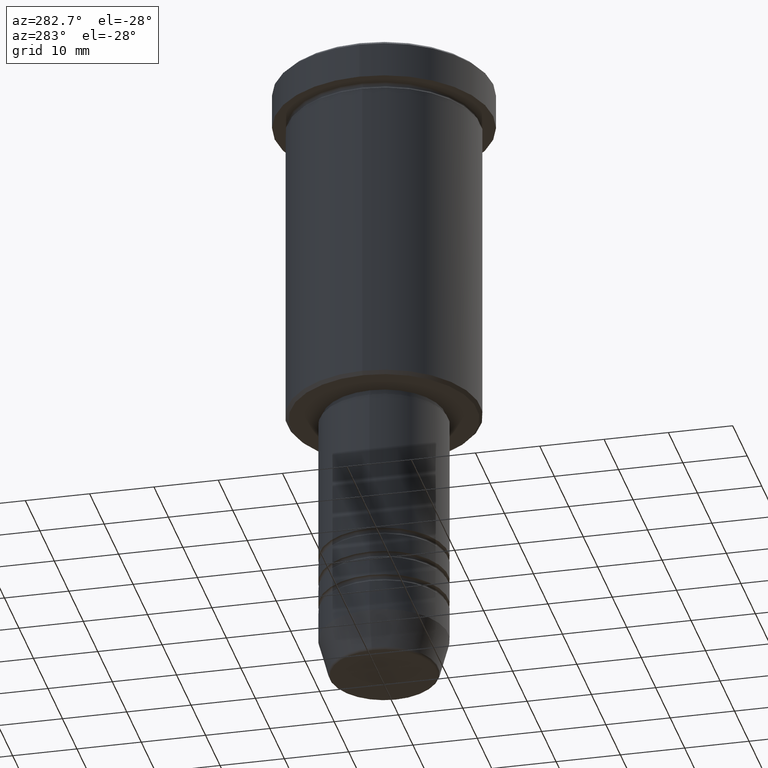
[diagram: clean part render]
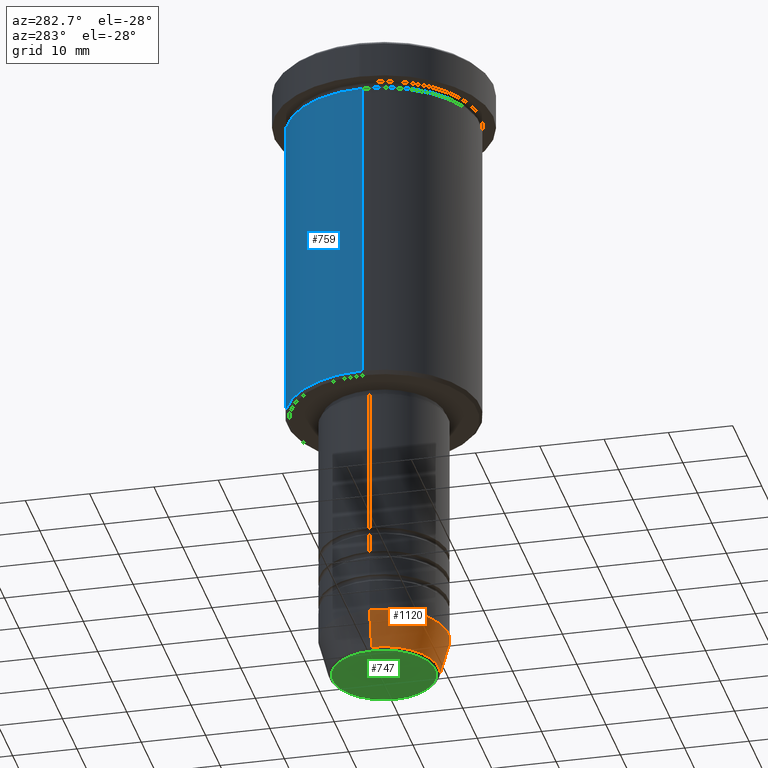
[diagram: same view with three faces highlighted in distinct colors, each labeled with its STEP entity id]
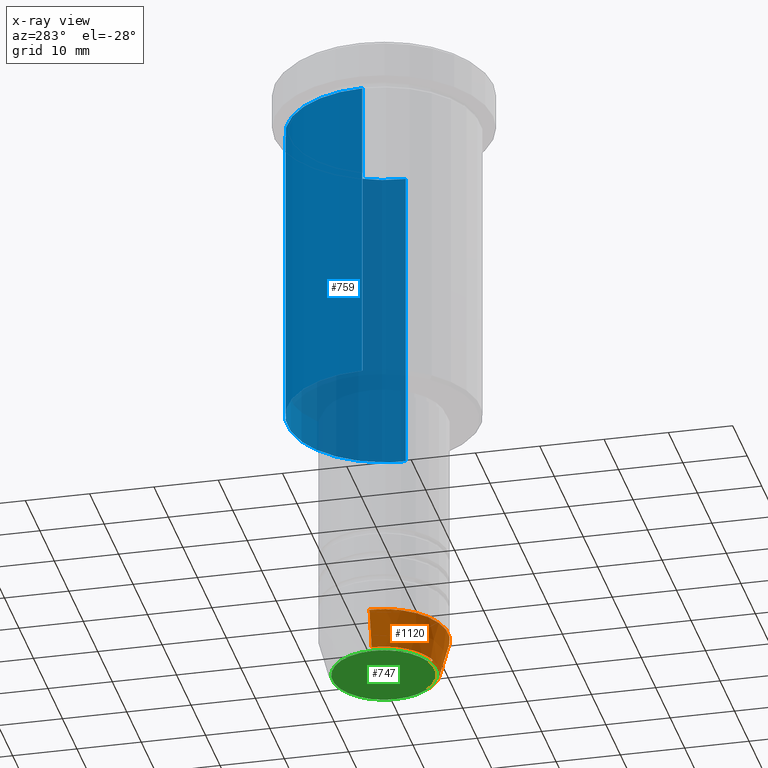
[diagram: x-ray of the same camera — body ghosted, the three highlighted faces saturated]
A machine part, auxiliary view with three faces highlighted in distinct colors.
The next image is the same camera in x-ray (body ghosted, the three faces saturated) — at least one of them is partly hidden behind the body in this view.
Their STEP definitions:

[orange] entity #1120 — the highlighted conical surface has half-angle 15 deg.
#3 = DIRECTION ( 'NONE',  ( 1.000000000000000000, 0.000000000000000000, 0.000000000000000000 ) ) ;
#40 = DIRECTION ( 'NONE',  ( 0.2588190451025214056, 0.000000000000000000, 0.9659258262890680902 ) ) ;
#45 = CARTESIAN_POINT ( 'NONE',  ( 0.000000000000000000, 0.000000000000000000, -99.62940952255127058 ) ) ;
#70 = CARTESIAN_POINT ( 'NONE',  ( 10.00000000000000178, 0.000000000000000000, -94.00000000000000000 ) ) ;
#84 = EDGE_CURVE ( 'NONE', #519, #623, #841, .T. ) ;
#99 = VECTOR ( 'NONE', #40, 1000.000000000000000 ) ;
#127 = EDGE_CURVE ( 'NONE', #305, #519, #198, .T. ) ;
#134 = DIRECTION ( 'NONE',  ( -0.000000000000000000, -0.000000000000000000, 1.000000000000000000 ) ) ;
#144 = DIRECTION ( 'NONE',  ( -0.000000000000000000, -0.000000000000000000, 1.000000000000000000 ) ) ;
#175 = ORIENTED_EDGE ( 'NONE', *, *, #84, .T. ) ;
#198 = CIRCLE ( 'NONE', #782, 8.491604264568312743 ) ;
#241 = FACE_OUTER_BOUND ( 'NONE', #551, .T. ) ;
#269 = DIRECTION ( 'NONE',  ( -0.2588190451025214056, 3.169619151431772953E-17, 0.9659258262890680902 ) ) ;
#273 = CIRCLE ( 'NONE', #802, 10.00000000000000178 ) ;
#280 = VERTEX_POINT ( 'NONE', #694 ) ;
#282 = CARTESIAN_POINT ( 'NONE',  ( -10.00000000000000178, 1.224646799147353454E-15, -94.00000000000000000 ) ) ;
#305 = VERTEX_POINT ( 'NONE', #447 ) ;
#357 = AXIS2_PLACEMENT_3D ( 'NONE', #719, #974, #3 ) ;
#377 = EDGE_CURVE ( 'NONE', #305, #280, #906, .T. ) ;
#437 = ORIENTED_EDGE ( 'NONE', *, *, #604, .F. ) ;
#447 = CARTESIAN_POINT ( 'NONE',  ( -8.491604264568312743, 1.132284198685156781E-15, -99.62940952255127058 ) ) ;
#511 = CARTESIAN_POINT ( 'NONE',  ( 10.00000000000000178, 0.000000000000000000, -94.00000000000000000 ) ) ;
#519 = VERTEX_POINT ( 'NONE', #733 ) ;
#551 = EDGE_LOOP ( 'NONE', ( #798, #1107, #175, #437 ) ) ;
#589 = DIRECTION ( 'NONE',  ( 1.000000000000000000, 0.000000000000000000, 0.000000000000000000 ) ) ;
#604 = EDGE_CURVE ( 'NONE', #280, #623, #273, .T. ) ;
#623 = VERTEX_POINT ( 'NONE', #70 ) ;
#694 = CARTESIAN_POINT ( 'NONE',  ( -10.00000000000000178, 1.224646799147353454E-15, -94.00000000000000000 ) ) ;
#719 = CARTESIAN_POINT ( 'NONE',  ( 0.000000000000000000, 0.000000000000000000, -94.00000000000000000 ) ) ;
#733 = CARTESIAN_POINT ( 'NONE',  ( 8.491604264568312743, 0.000000000000000000, -99.62940952255127058 ) ) ;
#773 = DIRECTION ( 'NONE',  ( 1.000000000000000000, 0.000000000000000000, 0.000000000000000000 ) ) ;
#782 = AXIS2_PLACEMENT_3D ( 'NONE', #45, #144, #589 ) ;
#798 = ORIENTED_EDGE ( 'NONE', *, *, #377, .F. ) ;
#802 = AXIS2_PLACEMENT_3D ( 'NONE', #1160, #134, #773 ) ;
#841 = LINE ( 'NONE', #511, #99 ) ;
#906 = LINE ( 'NONE', #282, #1170 ) ;
#952 = CONICAL_SURFACE ( 'NONE', #357, 10.00000000000000178, 0.2617993877991501295 ) ;
#974 = DIRECTION ( 'NONE',  ( -0.000000000000000000, -0.000000000000000000, 1.000000000000000000 ) ) ;
#1107 = ORIENTED_EDGE ( 'NONE', *, *, #127, .T. ) ;
#1120 = ADVANCED_FACE ( 'NONE', ( #241 ), #952, .T. ) ;
#1160 = CARTESIAN_POINT ( 'NONE',  ( 0.000000000000000000, 0.000000000000000000, -94.00000000000000000 ) ) ;
#1170 = VECTOR ( 'NONE', #269, 1000.000000000000000 ) ;

[blue] entity #759 — the highlighted cylindrical surface (partial cylindrical patch) has radius 15 mm, axis along (-0, -0, 1).
#52 = CARTESIAN_POINT ( 'NONE',  ( -15.00000000000000000, 1.836970198721029589E-15, 0.000000000000000000 ) ) ;
#131 = CARTESIAN_POINT ( 'NONE',  ( 15.00000000000000000, 0.000000000000000000, -55.49999999999997158 ) ) ;
#164 = CARTESIAN_POINT ( 'NONE',  ( 0.000000000000000000, 0.000000000000000000, 0.000000000000000000 ) ) ;
#167 = VERTEX_POINT ( 'NONE', #847 ) ;
#177 = DIRECTION ( 'NONE',  ( -0.000000000000000000, -0.000000000000000000, 1.000000000000000000 ) ) ;
#182 = EDGE_CURVE ( 'NONE', #884, #167, #316, .T. ) ;
#195 = LINE ( 'NONE', #535, #562 ) ;
#206 = VERTEX_POINT ( 'NONE', #494 ) ;
#213 = VERTEX_POINT ( 'NONE', #131 ) ;
#239 = DIRECTION ( 'NONE',  ( -0.000000000000000000, -0.000000000000000000, 1.000000000000000000 ) ) ;
#316 = LINE ( 'NONE', #52, #1169 ) ;
#317 = ORIENTED_EDGE ( 'NONE', *, *, #1150, .F. ) ;
#340 = DIRECTION ( 'NONE',  ( -1.000000000000000000, 0.000000000000000000, 0.000000000000000000 ) ) ;
#349 = EDGE_CURVE ( 'NONE', #213, #884, #989, .T. ) ;
#375 = CYLINDRICAL_SURFACE ( 'NONE', #417, 15.00000000000000000 ) ;
#382 = CARTESIAN_POINT ( 'NONE',  ( -15.00000000000000000, 1.836970198721029589E-15, -55.49999999999997158 ) ) ;
#417 = AXIS2_PLACEMENT_3D ( 'NONE', #164, #801, #730 ) ;
#433 = AXIS2_PLACEMENT_3D ( 'NONE', #441, #957, #340 ) ;
#441 = CARTESIAN_POINT ( 'NONE',  ( 0.000000000000000000, 0.000000000000000000, -55.49999999999997158 ) ) ;
#461 = ORIENTED_EDGE ( 'NONE', *, *, #182, .T. ) ;
#462 = CARTESIAN_POINT ( 'NONE',  ( 0.000000000000000000, 0.000000000000000000, -6.999999999999995559 ) ) ;
#494 = CARTESIAN_POINT ( 'NONE',  ( 15.00000000000000000, 0.000000000000000000, -6.999999999999995559 ) ) ;
#534 = DIRECTION ( 'NONE',  ( 1.000000000000000000, 0.000000000000000000, 0.000000000000000000 ) ) ;
#535 = CARTESIAN_POINT ( 'NONE',  ( 15.00000000000000000, 0.000000000000000000, 0.000000000000000000 ) ) ;
#548 = ORIENTED_EDGE ( 'NONE', *, *, #349, .T. ) ;
#554 = FACE_OUTER_BOUND ( 'NONE', #1059, .T. ) ;
#562 = VECTOR ( 'NONE', #886, 1000.000000000000000 ) ;
#721 = EDGE_CURVE ( 'NONE', #213, #206, #195, .T. ) ;
#730 = DIRECTION ( 'NONE',  ( 1.000000000000000000, 0.000000000000000000, 0.000000000000000000 ) ) ;
#759 = ADVANCED_FACE ( 'NONE', ( #554 ), #375, .T. ) ;
#801 = DIRECTION ( 'NONE',  ( -0.000000000000000000, -0.000000000000000000, 1.000000000000000000 ) ) ;
#839 = CIRCLE ( 'NONE', #877, 15.00000000000000000 ) ;
#847 = CARTESIAN_POINT ( 'NONE',  ( -15.00000000000000000, 1.836970198721029589E-15, -6.999999999999995559 ) ) ;
#877 = AXIS2_PLACEMENT_3D ( 'NONE', #462, #177, #534 ) ;
#884 = VERTEX_POINT ( 'NONE', #382 ) ;
#886 = DIRECTION ( 'NONE',  ( -0.000000000000000000, -0.000000000000000000, 1.000000000000000000 ) ) ;
#898 = ORIENTED_EDGE ( 'NONE', *, *, #721, .F. ) ;
#957 = DIRECTION ( 'NONE',  ( -0.000000000000000000, -0.000000000000000000, 1.000000000000000000 ) ) ;
#989 = CIRCLE ( 'NONE', #433, 15.00000000000000000 ) ;
#1059 = EDGE_LOOP ( 'NONE', ( #548, #461, #317, #898 ) ) ;
#1150 = EDGE_CURVE ( 'NONE', #206, #167, #839, .T. ) ;
#1169 = VECTOR ( 'NONE', #239, 1000.000000000000000 ) ;

[green] entity #747 — the highlighted planar face has unit normal (0, -0, 1).
#154 = CARTESIAN_POINT ( 'NONE',  ( -8.008641351423779753, 1.010348648938493172E-15, -100.0000000000000000 ) ) ;
#235 = CARTESIAN_POINT ( 'NONE',  ( 8.008641351423779753, 0.000000000000000000, -100.0000000000000000 ) ) ;
#252 = DIRECTION ( 'NONE',  ( 1.000000000000000000, 0.000000000000000000, 0.000000000000000000 ) ) ;
#295 = VERTEX_POINT ( 'NONE', #154 ) ;
#312 = AXIS2_PLACEMENT_3D ( 'NONE', #792, #1056, #252 ) ;
#368 = EDGE_CURVE ( 'NONE', #295, #1055, #558, .T. ) ;
#414 = EDGE_LOOP ( 'NONE', ( #1028, #1099 ) ) ;
#458 = AXIS2_PLACEMENT_3D ( 'NONE', #811, #729, #899 ) ;
#463 = CARTESIAN_POINT ( 'NONE',  ( 0.000000000000000000, 0.000000000000000000, -100.0000000000000000 ) ) ;
#558 = CIRCLE ( 'NONE', #312, 8.008641351423779753 ) ;
#564 = CIRCLE ( 'NONE', #458, 8.008641351423779753 ) ;
#729 = DIRECTION ( 'NONE',  ( 0.000000000000000000, 0.000000000000000000, -1.000000000000000000 ) ) ;
#747 = ADVANCED_FACE ( 'NONE', ( #1063 ), #900, .F. ) ;
#792 = CARTESIAN_POINT ( 'NONE',  ( 0.000000000000000000, 0.000000000000000000, -100.0000000000000000 ) ) ;
#811 = CARTESIAN_POINT ( 'NONE',  ( 0.000000000000000000, 0.000000000000000000, -100.0000000000000000 ) ) ;
#899 = DIRECTION ( 'NONE',  ( 1.000000000000000000, 0.000000000000000000, 0.000000000000000000 ) ) ;
#900 = PLANE ( 'NONE',  #914 ) ;
#914 = AXIS2_PLACEMENT_3D ( 'NONE', #463, #1083, #986 ) ;
#986 = DIRECTION ( 'NONE',  ( 1.000000000000000000, 0.000000000000000000, 0.000000000000000000 ) ) ;
#1028 = ORIENTED_EDGE ( 'NONE', *, *, #1140, .T. ) ;
#1055 = VERTEX_POINT ( 'NONE', #235 ) ;
#1056 = DIRECTION ( 'NONE',  ( 0.000000000000000000, 0.000000000000000000, -1.000000000000000000 ) ) ;
#1063 = FACE_OUTER_BOUND ( 'NONE', #414, .T. ) ;
#1083 = DIRECTION ( 'NONE',  ( 0.000000000000000000, -0.000000000000000000, 1.000000000000000000 ) ) ;
#1099 = ORIENTED_EDGE ( 'NONE', *, *, #368, .T. ) ;
#1140 = EDGE_CURVE ( 'NONE', #1055, #295, #564, .T. ) ;